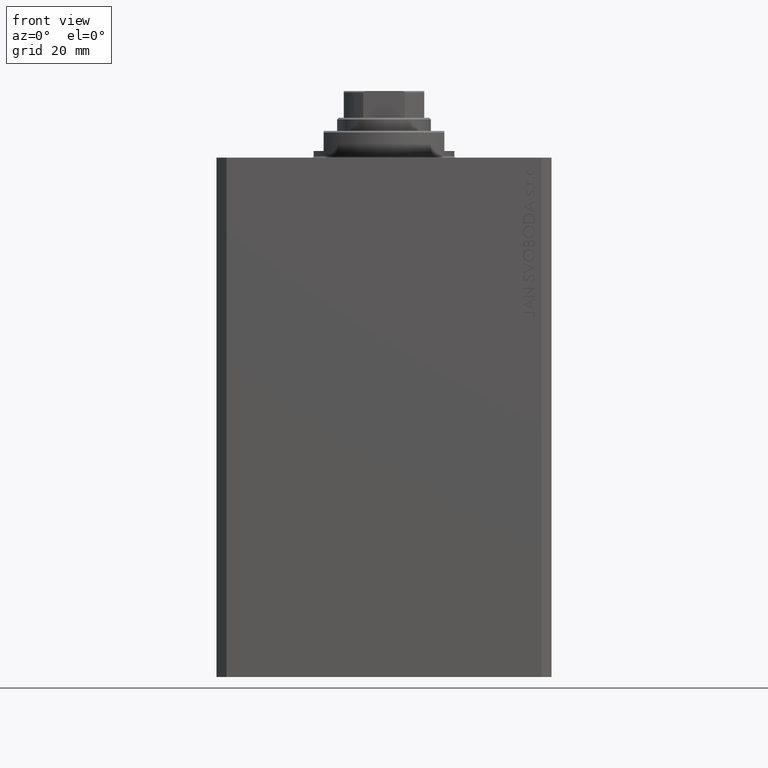
[diagram: clean part render]
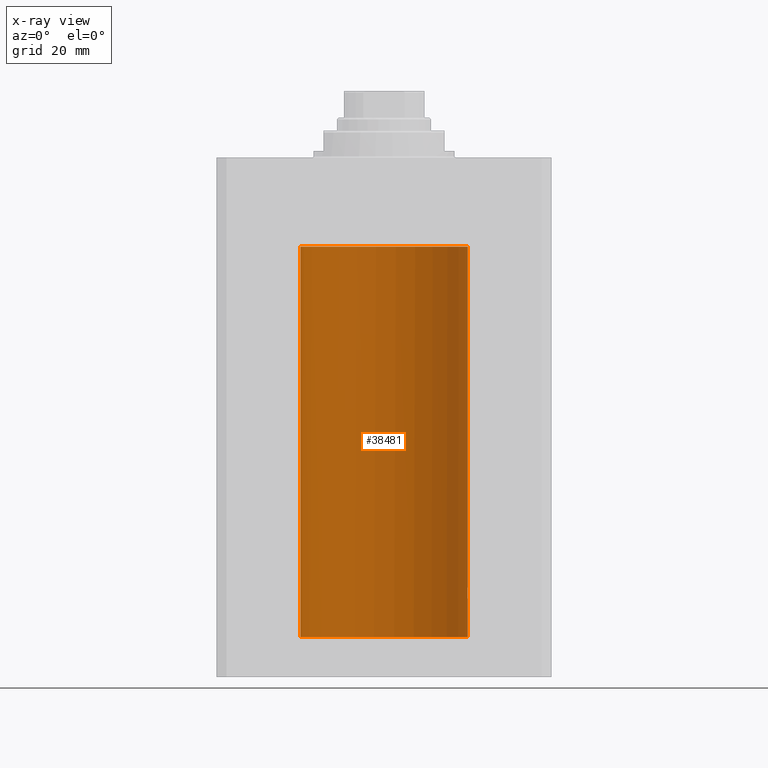
[diagram: x-ray — body ghosted, one internal face saturated and labeled with its STEP entity id]
A machine part, front view, then the same camera in x-ray: the body is ghosted and one INTERNAL B-rep face — a face not visible from any outside direction — is saturated and labeled: STEP entity #38481.
In plain terms, the highlighted cylindrical surface (partial cylindrical patch) has radius 25 mm, axis along (0, 0, 1).
Its self-contained STEP definition (entity closure, byte-faithful):
#95 = CARTESIAN_POINT ( 'NONE',  ( 24.98009620012517829, 1.003265033550147622, -128.2649430588943176 ) ) ;
#283 = CARTESIAN_POINT ( 'NONE',  ( 24.99196954445030627, 0.6450912151121425131, -131.8976436764501443 ) ) ;
#337 = CARTESIAN_POINT ( 'NONE',  ( 24.93533359819880957, 1.797683477752172410, -129.1137124550939461 ) ) ;
#430 = VERTEX_POINT ( 'NONE', #40020 ) ;
#809 = CARTESIAN_POINT ( 'NONE',  ( 24.95467834240024274, 1.507571193169175316, -128.6791451623710145 ) ) ;
#1249 = CARTESIAN_POINT ( 'NONE',  ( 0.000000000000000000, 0.000000000000000000, -143.0999999999999943 ) ) ;
#1416 = B_SPLINE_CURVE_WITH_KNOTS ( 'NONE', 3,
 ( #4196, #30429, #5128, #33805, #44988, #40730 ),
 .UNSPECIFIED., .F., .F.,
 ( 4, 2, 4 ),
 ( 0.000000000000000000, 0.0006408866495840856480, 0.001281773299168171296 ),
 .UNSPECIFIED. ) ;
#1564 = AXIS2_PLACEMENT_3D ( 'NONE', #1249, #41369, #9121 ) ;
#2282 = CARTESIAN_POINT ( 'NONE',  ( 24.99895171050671294, 0.2622427397369146429, -131.9870152263268324 ) ) ;
#2707 = VERTEX_POINT ( 'NONE', #25151 ) ;
#3160 = CARTESIAN_POINT ( 'NONE',  ( 24.94948532700468036, 1.599156973340005949, -131.2291341524913832 ) ) ;
#3922 = CARTESIAN_POINT ( 'NONE',  ( 25.00000000000000000, 0.1305261351234901501, -128.0000000000000000 ) ) ;
#4196 = CARTESIAN_POINT ( 'NONE',  ( -24.97118339206214088, 1.199999999999987521, -26.59999999999999787 ) ) ;
#4365 = VERTEX_POINT ( 'NONE', #4451 ) ;
#4451 = CARTESIAN_POINT ( 'NONE',  ( -25.00000000000000000, 3.060241555953638093E-15, -26.99999999999999645 ) ) ;
#5056 = VERTEX_POINT ( 'NONE', #35588 ) ;
#5128 = CARTESIAN_POINT ( 'NONE',  ( -24.98680550328683125, 0.8376193197215402453, -26.82896000732461061 ) ) ;
#7206 = CARTESIAN_POINT ( 'NONE',  ( 24.96516502151962413, 1.322522485723478081, -131.5059723511098184 ) ) ;
#7260 = CARTESIAN_POINT ( 'NONE',  ( 24.94947734723935540, 1.590234439578162018, -128.7801129525318800 ) ) ;
#7490 = CARTESIAN_POINT ( 'NONE',  ( 25.00000000000000000, -1.072061970195355044E-23, -128.0000000000000000 ) ) ;
#7985 = EDGE_CURVE ( 'NONE', #46371, #4365, #10521, .T. ) ;
#9121 = DIRECTION ( 'NONE',  ( 1.000000000000000000, 0.000000000000000000, 0.000000000000000000 ) ) ;
#9297 = ORIENTED_EDGE ( 'NONE', *, *, #15685, .T. ) ;
#9374 = CARTESIAN_POINT ( 'NONE',  ( 25.00000000000000000, 0.000000000000000000, -143.0999999999999943 ) ) ;
#9634 = ORIENTED_EDGE ( 'NONE', *, *, #30016, .T. ) ;
#9810 = VECTOR ( 'NONE', #36797, 1000.000000000000000 ) ;
#10326 = EDGE_CURVE ( 'NONE', #2707, #4365, #1416, .T. ) ;
#10521 = LINE ( 'NONE', #11473, #9810 ) ;
#10545 = CARTESIAN_POINT ( 'NONE',  ( 25.00000000000000000, -5.091947734879877638E-15, -132.0000000000000000 ) ) ;
#10788 = CARTESIAN_POINT ( 'NONE',  ( 24.91987158875419794, 2.000000000000375255, -130.0000000000000000 ) ) ;
#10838 = CARTESIAN_POINT ( 'NONE',  ( 24.99493190796008690, 0.5194315891213184821, -128.0642131447468159 ) ) ;
#11267 = VERTEX_POINT ( 'NONE', #24984 ) ;
#11473 = CARTESIAN_POINT ( 'NONE',  ( -25.00000000000000000, 3.061616997868383043E-15, -143.0999999999999943 ) ) ;
#11551 = CARTESIAN_POINT ( 'NONE',  ( 24.98457651818866054, 0.8863534138924967776, -128.2023442160224249 ) ) ;
#11552 = DIRECTION ( 'NONE',  ( 1.000000000000000000, 0.000000000000000000, 0.000000000000000000 ) ) ;
#12496 = DIRECTION ( 'NONE',  ( -0.000000000000000000, -0.000000000000000000, 1.000000000000000000 ) ) ;
#12770 = CARTESIAN_POINT ( 'NONE',  ( 24.91987158875419794, 2.000000000000375255, -130.0000000000000000 ) ) ;
#13997 = EDGE_CURVE ( 'NONE', #5056, #46371, #36640, .T. ) ;
#14130 = LINE ( 'NONE', #42383, #21973 ) ;
#14909 = CARTESIAN_POINT ( 'NONE',  ( 24.99199530066697861, 0.6440939830361807061, -128.1020190641096121 ) ) ;
#15379 = CARTESIAN_POINT ( 'NONE',  ( 24.97045842037802998, 1.219816859706702727, -128.4097138165729746 ) ) ;
#15381 = FACE_OUTER_BOUND ( 'NONE', #33680, .T. ) ;
#15685 = EDGE_CURVE ( 'NONE', #19684, #39814, #35731, .T. ) ;
#15731 = DIRECTION ( 'NONE',  ( 1.000000000000000000, 0.000000000000000000, 0.000000000000000000 ) ) ;
#15762 = ORIENTED_EDGE ( 'NONE', *, *, #37779, .T. ) ;
#17306 = CARTESIAN_POINT ( 'NONE',  ( -25.00000000000000000, 3.061616997868383043E-15, -143.0999999999999943 ) ) ;
#17675 = ORIENTED_EDGE ( 'NONE', *, *, #13997, .F. ) ;
#17713 = CARTESIAN_POINT ( 'NONE',  ( 24.93900639076504433, 1.748128916801911181, -131.0059564568424832 ) ) ;
#18730 = CARTESIAN_POINT ( 'NONE',  ( 0.000000000000000000, 0.000000000000000000, -143.0999999999999943 ) ) ;
#19318 = DIRECTION ( 'NONE',  ( 0.000000000000000000, 0.000000000000000000, 1.000000000000000000 ) ) ;
#19623 = ORIENTED_EDGE ( 'NONE', *, *, #21884, .T. ) ;
#19684 = VERTEX_POINT ( 'NONE', #12770 ) ;
#19783 = CARTESIAN_POINT ( 'NONE',  ( 0.000000000000000000, 0.000000000000000000, -26.60000000000000142 ) ) ;
#20132 = LINE ( 'NONE', #9374, #21359 ) ;
#21359 = VECTOR ( 'NONE', #34927, 1000.000000000000000 ) ;
#21543 = DIRECTION ( 'NONE',  ( -0.000000000000000000, -0.000000000000000000, 1.000000000000000000 ) ) ;
#21834 = CARTESIAN_POINT ( 'NONE',  ( 24.92790171662583987, 1.897957730269075993, -129.3558509857567174 ) ) ;
#21884 = EDGE_CURVE ( 'NONE', #430, #2707, #38319, .T. ) ;
#21973 = VECTOR ( 'NONE', #21543, 1000.000000000000000 ) ;
#24278 = ORIENTED_EDGE ( 'NONE', *, *, #29982, .T. ) ;
#24984 = CARTESIAN_POINT ( 'NONE',  ( 25.00000000000000000, -5.091947734879877638E-15, -132.0000000000000000 ) ) ;
#25151 = CARTESIAN_POINT ( 'NONE',  ( -24.97118339206214088, 1.199999999999987521, -26.59999999999999787 ) ) ;
#26368 = CARTESIAN_POINT ( 'NONE',  ( 24.93982559358190443, 1.735040297787693753, -128.9967028623315173 ) ) ;
#26649 = B_SPLINE_CURVE_WITH_KNOTS ( 'NONE', 3,
 ( #10545, #32283, #2282, #45965, #283, #27832, #38816, #35869, #7206, #3160, #17713, #46843, #28930, #10788 ),
 .UNSPECIFIED., .F., .F.,
 ( 4, 2, 2, 2, 2, 2, 4 ),
 ( 4.948121741372981372E-18, 0.0003910529405526613853, 0.0007821058811053178917, 0.001173158821657974398, 0.001564211762210630796, 0.002346317643316002573, 0.003128423524421374349 ),
 .UNSPECIFIED. ) ;
#27832 = CARTESIAN_POINT ( 'NONE',  ( 24.98454161695537579, 0.8873356620646051240, -131.7971726743457452 ) ) ;
#28930 = CARTESIAN_POINT ( 'NONE',  ( 24.91987158875419439, 2.000000000000376144, -130.2610752061100357 ) ) ;
#29220 = CARTESIAN_POINT ( 'NONE',  ( 24.91987158875419794, 2.000000000000375255, -130.0000000000000000 ) ) ;
#29936 = CARTESIAN_POINT ( 'NONE',  ( 24.96525661602875701, 1.320872503675255993, -128.4924442850773971 ) ) ;
#29982 = EDGE_CURVE ( 'NONE', #39814, #430, #14130, .T. ) ;
#30016 = EDGE_CURVE ( 'NONE', #11267, #19684, #26649, .T. ) ;
#30429 = CARTESIAN_POINT ( 'NONE',  ( -24.97950800354324485, 1.026770500031154887, -26.72992212497661768 ) ) ;
#31705 = CARTESIAN_POINT ( 'NONE',  ( 25.00000000000000000, -1.072061970195355044E-23, -128.0000000000000000 ) ) ;
#32283 = CARTESIAN_POINT ( 'NONE',  ( 25.00000000000000355, 0.1322318523520167322, -132.0000000000000568 ) ) ;
#32303 = ORIENTED_EDGE ( 'NONE', *, *, #10326, .T. ) ;
#33535 = CARTESIAN_POINT ( 'NONE',  ( 24.99894413130755311, 0.2631018416927570769, -128.0130784248878797 ) ) ;
#33680 = EDGE_LOOP ( 'NONE', ( #46153, #17675, #15762, #9634, #9297, #24278, #19623, #32303 ) ) ;
#33805 = CARTESIAN_POINT ( 'NONE',  ( -24.99718407171789991, 0.4276024655076519632, -26.96566959702169086 ) ) ;
#34927 = DIRECTION ( 'NONE',  ( -0.000000000000000000, -0.000000000000000000, 1.000000000000000000 ) ) ;
#35588 = CARTESIAN_POINT ( 'NONE',  ( 25.00000000000000000, 0.000000000000000000, -143.0999999999999943 ) ) ;
#35731 = B_SPLINE_CURVE_WITH_KNOTS ( 'NONE', 3,
 ( #29220, #40216, #37118, #37351, #21834, #337, #26368, #7260, #809, #29936, #15379, #95, #11551, #14909, #10838, #33535, #3922, #7490 ),
 .UNSPECIFIED., .F., .F.,
 ( 4, 2, 2, 2, 2, 2, 2, 2, 4 ),
 ( 0.003128423524421374349, 0.003519296810509135818, 0.003910170096596897286, 0.004301043382684659189, 0.004691916668772420224, 0.005082789954860182126, 0.005473663240947944028, 0.005864536527035705063, 0.006255409813123466965 ),
 .UNSPECIFIED. ) ;
#35869 = CARTESIAN_POINT ( 'NONE',  ( 24.97046928552371270, 1.219632852334580075, -131.5904672177837256 ) ) ;
#36640 = CIRCLE ( 'NONE', #1564, 25.00000000000000000 ) ;
#36797 = DIRECTION ( 'NONE',  ( -0.000000000000000000, -0.000000000000000000, 1.000000000000000000 ) ) ;
#37118 = CARTESIAN_POINT ( 'NONE',  ( 24.92092960952686909, 1.986938806757485132, -129.7369911891059076 ) ) ;
#37351 = CARTESIAN_POINT ( 'NONE',  ( 24.92495585240438061, 1.935777409849492203, -129.4805144122084073 ) ) ;
#37779 = EDGE_CURVE ( 'NONE', #5056, #11267, #20132, .T. ) ;
#37815 = CYLINDRICAL_SURFACE ( 'NONE', #44994, 25.00000000000000000 ) ;
#38319 = CIRCLE ( 'NONE', #42121, 25.00000000000000000 ) ;
#38481 = ADVANCED_FACE ( 'NONE', ( #15381 ), #37815, .F. ) ;
#38816 = CARTESIAN_POINT ( 'NONE',  ( 24.98014008684977938, 1.002218476749562326, -131.7356982428405843 ) ) ;
#39814 = VERTEX_POINT ( 'NONE', #31705 ) ;
#40020 = CARTESIAN_POINT ( 'NONE',  ( 25.00000000000000000, 0.000000000000000000, -26.60000000000000142 ) ) ;
#40216 = CARTESIAN_POINT ( 'NONE',  ( 24.91987158875419084, 2.000000000000375255, -129.8695223675034924 ) ) ;
#40730 = CARTESIAN_POINT ( 'NONE',  ( -25.00000000000000000, 3.060241555953638093E-15, -26.99999999999999645 ) ) ;
#41369 = DIRECTION ( 'NONE',  ( 0.000000000000000000, 0.000000000000000000, 1.000000000000000000 ) ) ;
#42121 = AXIS2_PLACEMENT_3D ( 'NONE', #19783, #19318, #15731 ) ;
#42383 = CARTESIAN_POINT ( 'NONE',  ( 25.00000000000000000, 0.000000000000000000, -143.0999999999999943 ) ) ;
#44988 = CARTESIAN_POINT ( 'NONE',  ( -25.00000000000000355, 0.2156805908219409651, -26.99999999999999645 ) ) ;
#44994 = AXIS2_PLACEMENT_3D ( 'NONE', #18730, #12496, #11552 ) ;
#45965 = CARTESIAN_POINT ( 'NONE',  ( 24.99496001540386203, 0.5180074392840654518, -131.9361479946135205 ) ) ;
#46153 = ORIENTED_EDGE ( 'NONE', *, *, #7985, .F. ) ;
#46371 = VERTEX_POINT ( 'NONE', #17306 ) ;
#46843 = CARTESIAN_POINT ( 'NONE',  ( 24.92422785753205972, 1.947526681255378866, -130.5244453533215960 ) ) ;